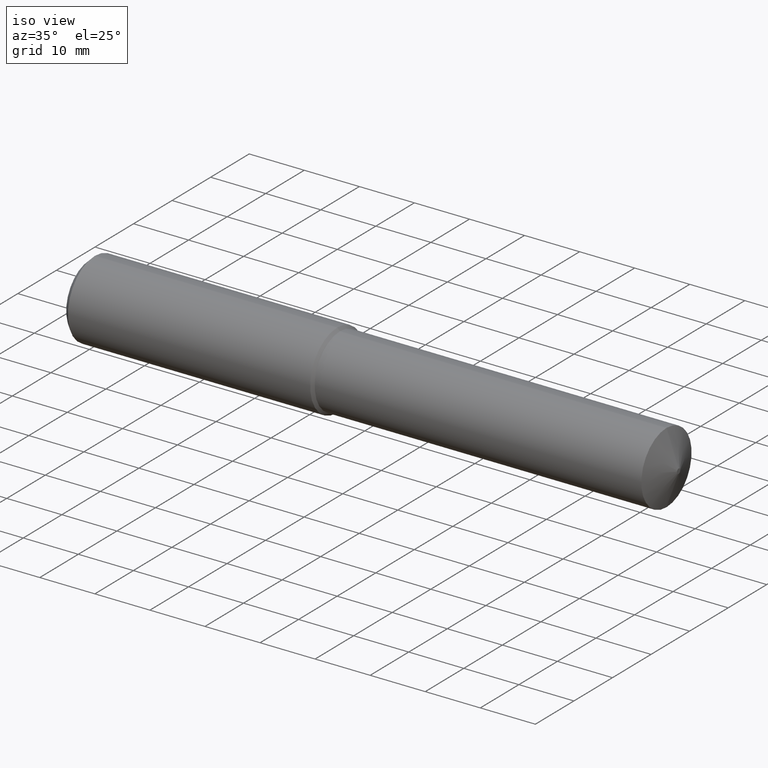
[diagram: clean part render]
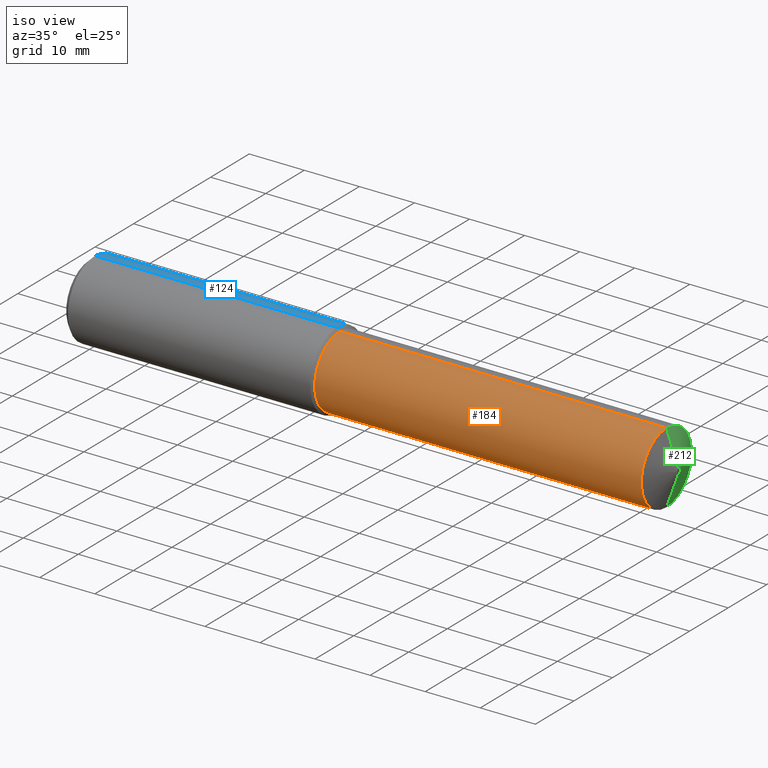
[diagram: same view with three faces highlighted in distinct colors, each labeled with its STEP entity id]
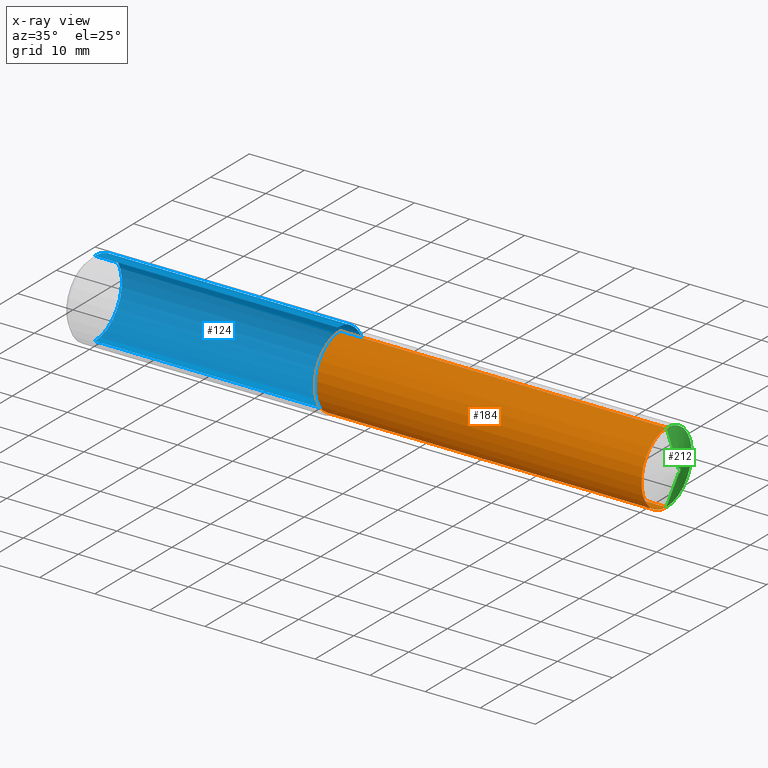
[diagram: x-ray of the same camera — body ghosted, the three highlighted faces saturated]
A machine part, iso view with three faces highlighted in distinct colors.
The next image is the same camera in x-ray (body ghosted, the three faces saturated) — at least one of them is partly hidden behind the body in this view.
Their STEP definitions:

[orange] entity #184 — the highlighted cylindrical surface (partial cylindrical patch) has radius 6.5151 mm, axis along (1, -0, -0).
#11 = CARTESIAN_POINT ( 'NONE',  ( 1.790744094488189164, 0.000000000000000000, -0.2565000000000002278 ) ) ;
#15 = DIRECTION ( 'NONE',  ( 0.000000000000000000, 0.000000000000000000, -1.000000000000000000 ) ) ;
#16 = DIRECTION ( 'NONE',  ( 1.000000000000000000, -0.000000000000000000, -0.000000000000000000 ) ) ;
#31 = CIRCLE ( 'NONE', #269, 0.2565000000000002278 ) ;
#35 = CARTESIAN_POINT ( 'NONE',  ( -0.03808593750000075634, 0.000000000000000000, 0.000000000000000000 ) ) ;
#37 = DIRECTION ( 'NONE',  ( 1.000000000000000000, -0.000000000000000000, -0.000000000000000000 ) ) ;
#38 = CARTESIAN_POINT ( 'NONE',  ( 1.790744094488189164, 3.141219039812965114E-17, 0.2565000000000002278 ) ) ;
#40 = DIRECTION ( 'NONE',  ( 0.000000000000000000, 0.000000000000000000, -1.000000000000000000 ) ) ;
#47 = LINE ( 'NONE', #102, #223 ) ;
#49 = VERTEX_POINT ( 'NONE', #206 ) ;
#59 = EDGE_CURVE ( 'NONE', #49, #168, #100, .T. ) ;
#66 = CARTESIAN_POINT ( 'NONE',  ( 1.790744094488189164, 0.000000000000000000, 0.000000000000000000 ) ) ;
#69 = EDGE_CURVE ( 'NONE', #114, #49, #264, .T. ) ;
#80 = ORIENTED_EDGE ( 'NONE', *, *, #325, .T. ) ;
#89 = AXIS2_PLACEMENT_3D ( 'NONE', #151, #37, #94 ) ;
#94 = DIRECTION ( 'NONE',  ( 0.000000000000000000, 0.000000000000000000, -1.000000000000000000 ) ) ;
#100 = CIRCLE ( 'NONE', #89, 0.2565000000000005054 ) ;
#102 = CARTESIAN_POINT ( 'NONE',  ( -0.03808593750000075634, 0.000000000000000000, -0.2565000000000003944 ) ) ;
#103 = DIRECTION ( 'NONE',  ( 1.000000000000000000, -0.000000000000000000, -0.000000000000000000 ) ) ;
#114 = VERTEX_POINT ( 'NONE', #38 ) ;
#146 = CARTESIAN_POINT ( 'NONE',  ( -0.03808593750000075634, 3.141219039812965731E-17, 0.2565000000000003944 ) ) ;
#151 = CARTESIAN_POINT ( 'NONE',  ( 4.125609539207228948, 0.000000000000000000, 0.000000000000000000 ) ) ;
#167 = ORIENTED_EDGE ( 'NONE', *, *, #69, .F. ) ;
#168 = VERTEX_POINT ( 'NONE', #175 ) ;
#173 = VECTOR ( 'NONE', #359, 39.37007874015748143 ) ;
#175 = CARTESIAN_POINT ( 'NONE',  ( 4.125609539207228948, 3.141219039812967579E-17, -0.2565000000000005054 ) ) ;
#184 = ADVANCED_FACE ( 'NONE', ( #330 ), #295, .T. ) ;
#193 = EDGE_LOOP ( 'NONE', ( #167, #376, #80, #354 ) ) ;
#206 = CARTESIAN_POINT ( 'NONE',  ( 4.125609539207228948, 0.000000000000000000, 0.2565000000000005054 ) ) ;
#223 = VECTOR ( 'NONE', #341, 39.37007874015748143 ) ;
#251 = AXIS2_PLACEMENT_3D ( 'NONE', #35, #103, #40 ) ;
#264 = LINE ( 'NONE', #146, #173 ) ;
#269 = AXIS2_PLACEMENT_3D ( 'NONE', #66, #16, #15 ) ;
#277 = EDGE_CURVE ( 'NONE', #114, #345, #31, .T. ) ;
#295 = CYLINDRICAL_SURFACE ( 'NONE', #251, 0.2565000000000003944 ) ;
#325 = EDGE_CURVE ( 'NONE', #345, #168, #47, .T. ) ;
#330 = FACE_OUTER_BOUND ( 'NONE', #193, .T. ) ;
#341 = DIRECTION ( 'NONE',  ( 1.000000000000000000, -0.000000000000000000, -0.000000000000000000 ) ) ;
#345 = VERTEX_POINT ( 'NONE', #11 ) ;
#354 = ORIENTED_EDGE ( 'NONE', *, *, #59, .F. ) ;
#359 = DIRECTION ( 'NONE',  ( 1.000000000000000000, -0.000000000000000000, -0.000000000000000000 ) ) ;
#376 = ORIENTED_EDGE ( 'NONE', *, *, #277, .T. ) ;

[blue] entity #124 — the highlighted cylindrical surface (partial cylindrical patch) has radius 7 mm, axis along (1, -0, -0).
#5 = CIRCLE ( 'NONE', #148, 0.2755905511811025943 ) ;
#6 = FACE_OUTER_BOUND ( 'NONE', #287, .T. ) ;
#19 = CARTESIAN_POINT ( 'NONE',  ( 1.771653543307086576, 0.000000000000000000, 0.2755905511811025943 ) ) ;
#34 = CARTESIAN_POINT ( 'NONE',  ( 0.03937007874015747977, 3.375010863791918991E-17, 0.2755905511811023723 ) ) ;
#42 = DIRECTION ( 'NONE',  ( 1.000000000000000000, -0.000000000000000000, -0.000000000000000000 ) ) ;
#53 = VERTEX_POINT ( 'NONE', #34 ) ;
#63 = LINE ( 'NONE', #237, #273 ) ;
#98 = EDGE_CURVE ( 'NONE', #260, #231, #63, .T. ) ;
#116 = ORIENTED_EDGE ( 'NONE', *, *, #98, .F. ) ;
#117 = DIRECTION ( 'NONE',  ( 1.000000000000000000, -0.000000000000000000, -0.000000000000000000 ) ) ;
#120 = DIRECTION ( 'NONE',  ( 0.000000000000000000, 0.000000000000000000, -1.000000000000000000 ) ) ;
#121 = CIRCLE ( 'NONE', #169, 0.2755905511811023723 ) ;
#123 = DIRECTION ( 'NONE',  ( 1.000000000000000000, -0.000000000000000000, -0.000000000000000000 ) ) ;
#124 = ADVANCED_FACE ( 'NONE', ( #6 ), #335, .T. ) ;
#130 = DIRECTION ( 'NONE',  ( 1.000000000000000000, -0.000000000000000000, -0.000000000000000000 ) ) ;
#131 = ORIENTED_EDGE ( 'NONE', *, *, #334, .T. ) ;
#148 = AXIS2_PLACEMENT_3D ( 'NONE', #304, #42, #271 ) ;
#160 = CARTESIAN_POINT ( 'NONE',  ( -0.03808593750000075634, 3.375010863791919607E-17, 0.2755905511811024833 ) ) ;
#169 = AXIS2_PLACEMENT_3D ( 'NONE', #216, #342, #339 ) ;
#190 = CARTESIAN_POINT ( 'NONE',  ( 0.03937007874015747977, 0.000000000000000000, -0.2755905511811023723 ) ) ;
#201 = ORIENTED_EDGE ( 'NONE', *, *, #371, .F. ) ;
#203 = EDGE_CURVE ( 'NONE', #260, #53, #121, .T. ) ;
#216 = CARTESIAN_POINT ( 'NONE',  ( 0.03937007874015747977, 0.000000000000000000, 0.000000000000000000 ) ) ;
#228 = ORIENTED_EDGE ( 'NONE', *, *, #203, .T. ) ;
#231 = VERTEX_POINT ( 'NONE', #274 ) ;
#237 = CARTESIAN_POINT ( 'NONE',  ( -0.03808593750000075634, 0.000000000000000000, -0.2755905511811024833 ) ) ;
#260 = VERTEX_POINT ( 'NONE', #190 ) ;
#266 = LINE ( 'NONE', #160, #327 ) ;
#271 = DIRECTION ( 'NONE',  ( 0.000000000000000000, 0.000000000000000000, -1.000000000000000000 ) ) ;
#273 = VECTOR ( 'NONE', #117, 39.37007874015748143 ) ;
#274 = CARTESIAN_POINT ( 'NONE',  ( 1.771653543307086576, 3.375010863791920840E-17, -0.2755905511811025943 ) ) ;
#287 = EDGE_LOOP ( 'NONE', ( #228, #131, #201, #116 ) ) ;
#289 = VERTEX_POINT ( 'NONE', #19 ) ;
#298 = CARTESIAN_POINT ( 'NONE',  ( -0.03808593750000075634, 0.000000000000000000, 0.000000000000000000 ) ) ;
#304 = CARTESIAN_POINT ( 'NONE',  ( 1.771653543307086576, 0.000000000000000000, 0.000000000000000000 ) ) ;
#314 = AXIS2_PLACEMENT_3D ( 'NONE', #298, #123, #120 ) ;
#327 = VECTOR ( 'NONE', #130, 39.37007874015748143 ) ;
#334 = EDGE_CURVE ( 'NONE', #53, #289, #266, .T. ) ;
#335 = CYLINDRICAL_SURFACE ( 'NONE', #314, 0.2755905511811024833 ) ;
#339 = DIRECTION ( 'NONE',  ( 0.000000000000000000, 0.000000000000000000, -1.000000000000000000 ) ) ;
#342 = DIRECTION ( 'NONE',  ( 1.000000000000000000, -0.000000000000000000, -0.000000000000000000 ) ) ;
#371 = EDGE_CURVE ( 'NONE', #231, #289, #5, .T. ) ;

[green] entity #212 — the highlighted conical surface has half-angle 70 deg.
#14 = AXIS2_PLACEMENT_3D ( 'NONE', #243, #369, #240 ) ;
#20 = DIRECTION ( 'NONE',  ( 0.000000000000000000, 0.000000000000000000, 1.000000000000000000 ) ) ;
#27 = ORIENTED_EDGE ( 'NONE', *, *, #300, .F. ) ;
#29 = ORIENTED_EDGE ( 'NONE', *, *, #258, .T. ) ;
#44 = CARTESIAN_POINT ( 'NONE',  ( 4.212598425196850016, 0.000000000000000000, 0.01750000000000052208 ) ) ;
#45 = AXIS2_PLACEMENT_3D ( 'NONE', #262, #149, #64 ) ;
#49 = VERTEX_POINT ( 'NONE', #206 ) ;
#57 = CIRCLE ( 'NONE', #45, 0.2565000000000005054 ) ;
#64 = DIRECTION ( 'NONE',  ( 0.000000000000000000, 0.000000000000000000, -1.000000000000000000 ) ) ;
#72 = AXIS2_PLACEMENT_3D ( 'NONE', #75, #127, #20 ) ;
#75 = CARTESIAN_POINT ( 'NONE',  ( 4.212598425196850016, 0.000000000000000000, 0.000000000000000000 ) ) ;
#76 = EDGE_CURVE ( 'NONE', #257, #49, #202, .T. ) ;
#87 = EDGE_CURVE ( 'NONE', #168, #49, #57, .T. ) ;
#93 = CARTESIAN_POINT ( 'NONE',  ( 4.212598425196850016, 0.000000000000000000, 0.01750000000000052208 ) ) ;
#104 = VECTOR ( 'NONE', #152, 39.37007874015748854 ) ;
#127 = DIRECTION ( 'NONE',  ( -1.000000000000000000, 0.000000000000000000, 0.000000000000000000 ) ) ;
#128 = LINE ( 'NONE', #158, #329 ) ;
#138 = ORIENTED_EDGE ( 'NONE', *, *, #76, .F. ) ;
#149 = DIRECTION ( 'NONE',  ( 1.000000000000000000, -0.000000000000000000, -0.000000000000000000 ) ) ;
#152 = DIRECTION ( 'NONE',  ( -0.3420201433256671031, 0.000000000000000000, 0.9396926207859088720 ) ) ;
#158 = CARTESIAN_POINT ( 'NONE',  ( 4.212598425196850016, 2.143131898507931930E-18, -0.01750000000000052208 ) ) ;
#168 = VERTEX_POINT ( 'NONE', #175 ) ;
#175 = CARTESIAN_POINT ( 'NONE',  ( 4.125609539207228948, 3.141219039812967579E-17, -0.2565000000000005054 ) ) ;
#185 = CARTESIAN_POINT ( 'NONE',  ( 4.212598425196850016, 1.677766114831880656E-17, -0.01750000000000052208 ) ) ;
#197 = VERTEX_POINT ( 'NONE', #185 ) ;
#199 = EDGE_LOOP ( 'NONE', ( #27, #29, #353, #138 ) ) ;
#202 = LINE ( 'NONE', #93, #104 ) ;
#206 = CARTESIAN_POINT ( 'NONE',  ( 4.125609539207228948, 0.000000000000000000, 0.2565000000000005054 ) ) ;
#212 = ADVANCED_FACE ( 'NONE', ( #218 ), #253, .T. ) ;
#218 = FACE_OUTER_BOUND ( 'NONE', #199, .T. ) ;
#240 = DIRECTION ( 'NONE',  ( 0.000000000000000000, 0.000000000000000000, -1.000000000000000000 ) ) ;
#243 = CARTESIAN_POINT ( 'NONE',  ( 4.212598425196850016, 0.000000000000000000, 0.000000000000000000 ) ) ;
#253 = CONICAL_SURFACE ( 'NONE', #72, 0.01750000000000052208, 1.221730476396032383 ) ;
#257 = VERTEX_POINT ( 'NONE', #44 ) ;
#258 = EDGE_CURVE ( 'NONE', #197, #168, #128, .T. ) ;
#262 = CARTESIAN_POINT ( 'NONE',  ( 4.125609539207228948, 0.000000000000000000, 0.000000000000000000 ) ) ;
#292 = CIRCLE ( 'NONE', #14, 0.01750000000000052208 ) ;
#300 = EDGE_CURVE ( 'NONE', #197, #257, #292, .T. ) ;
#329 = VECTOR ( 'NONE', #336, 39.37007874015748854 ) ;
#336 = DIRECTION ( 'NONE',  ( -0.3420201433256671031, 1.150791560227850763E-16, -0.9396926207859088720 ) ) ;
#353 = ORIENTED_EDGE ( 'NONE', *, *, #87, .T. ) ;
#369 = DIRECTION ( 'NONE',  ( 1.000000000000000000, -0.000000000000000000, -0.000000000000000000 ) ) ;